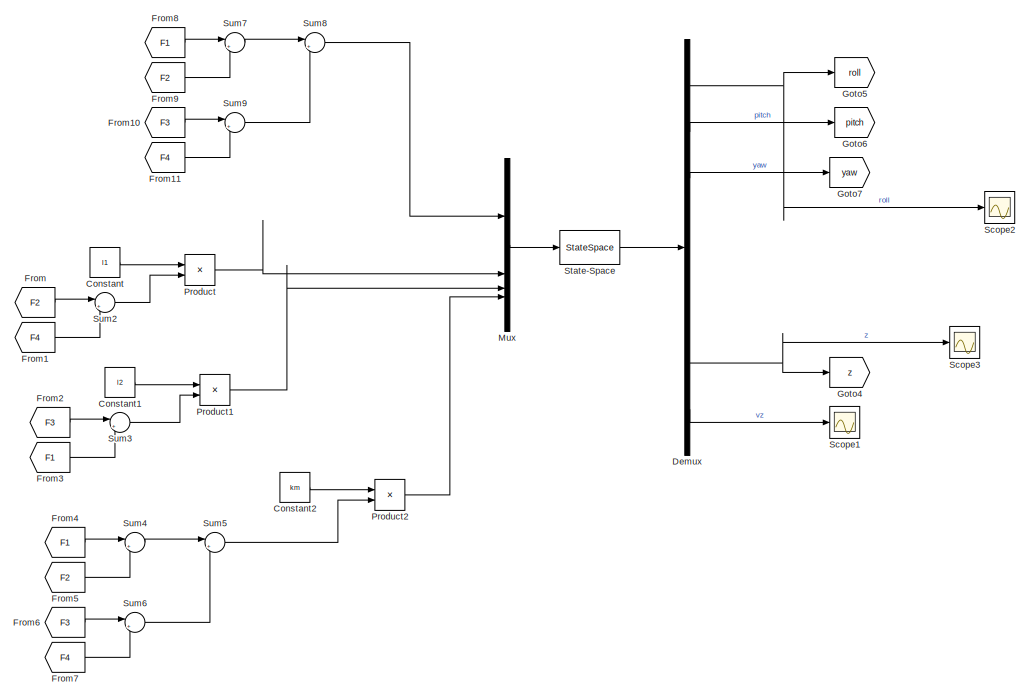
[diagram: root canvas - part 1/2, right side, full height]
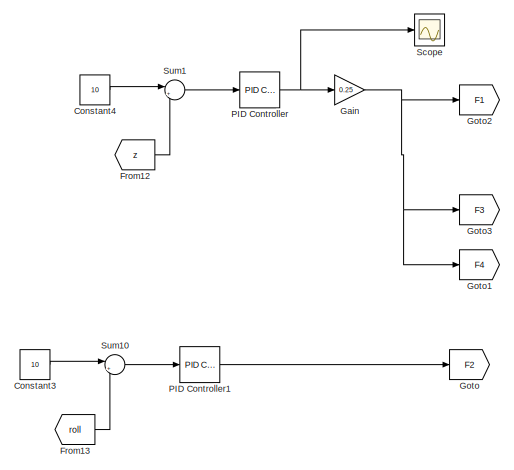
[diagram: root canvas - part 2/2, middle left region]
MODEL slx_9cf74176b95e
KIND model
CONFIG AbsTol = auto
CONFIG EnableMultiTasking = off
CONFIG FixedStep = 0.016
CONFIG MaxStep = auto
CONFIG MinStep = auto
CONFIG RelTol = 1e-3
CONFIG SampleTimeConstraint = Unconstrained
CONFIG SolverName = ode5
CONFIG StartTime = 0.0
CONFIG StopTime = 10
BLOCK [Constant] Constant
  Value = l1
BLOCK [Constant] Constant1
  Value = l2
BLOCK [Constant] Constant2
  Value = km
BLOCK [Constant] Constant3
  Value = 10
BLOCK [Constant] Constant4
  Value = 10
BLOCK [Demux] Demux
  Outputs = 8
BLOCK [From] From
  GotoTag = F2
BLOCK [From] From1
  GotoTag = F4
BLOCK [From] From10
  GotoTag = F3
BLOCK [From] From11
  GotoTag = F4
BLOCK [From] From12
  GotoTag = z
BLOCK [From] From13
  GotoTag = roll
BLOCK [From] From2
  GotoTag = F3
BLOCK [From] From3
  GotoTag = F1
BLOCK [From] From4
  GotoTag = F1
BLOCK [From] From5
  GotoTag = F2
BLOCK [From] From6
  GotoTag = F3
BLOCK [From] From7
  GotoTag = F4
BLOCK [From] From8
  GotoTag = F1
BLOCK [From] From9
  GotoTag = F2
BLOCK [Gain] Gain
  Gain = 0.25
BLOCK [Goto] Goto
  GotoTag = F2
BLOCK [Goto] Goto1
  GotoTag = F4
BLOCK [Goto] Goto2
  GotoTag = F1
BLOCK [Goto] Goto3
  GotoTag = F3
BLOCK [Goto] Goto4
  GotoTag = z
BLOCK [Goto] Goto5
  GotoTag = roll
BLOCK [Goto] Goto6
  GotoTag = pitch
BLOCK [Goto] Goto7
  GotoTag = yaw
BLOCK [Mux] Mux
  DisplayOption = bar
BLOCK [Reference] PID Controller  REF=slpidlib/PID Controller
  LibrarySourceBlock = simulink/Continuous/PID Controller
  SourceBlock = slpidlib/PID Controller
  SourceType = PID 1dof
BLOCK [Reference] PID Controller1  REF=slpidlib/PID Controller
  LibrarySourceBlock = simulink/Continuous/PID Controller
  SourceBlock = slpidlib/PID Controller
  SourceType = PID 1dof
BLOCK [Product] Product
BLOCK [Product] Product1
BLOCK [Product] Product2
BLOCK [Scope] Scope
  Floating = off
  NumInputPorts = 1
  ScopeSpecificationString = Simulink.scopes.TimeScopeBlockCfg('CurrentConfiguration', extmgr.ConfigurationSet(extmgr.Configuration('Core','General UI',true),extmgr.Configuration('Core','Source UI',true),extmgr.Configuration('Sources','WiredSimulink',true,'DataLoggingVariableName','ScopeData3'),extmgr.Configuration('Visuals','Time Domain',true),extmgr.Configuration('Tools','Plot Navigation',true),extmgr.Configuration('Tools',...<+40ch>
BLOCK [Scope] Scope1
  Floating = off
  NumInputPorts = 1
  ScopeSpecificationString = Simulink.scopes.TimeScopeBlockCfg('CurrentConfiguration', extmgr.ConfigurationSet(extmgr.Configuration('Core','General UI',true),extmgr.Configuration('Core','Source UI',true),extmgr.Configuration('Sources','WiredSimulink',true,'DataLoggingVariableName','ScopeData1'),extmgr.Configuration('Visuals','Time Domain',true,'SerializedDisplays',{struct('MinYLimReal','-1.8233','MaxYLimReal','12.94163','YLab...<+1452ch>
BLOCK [Scope] Scope2
  Floating = off
  NumInputPorts = 1
  ScopeSpecificationString = Simulink.scopes.TimeScopeBlockCfg('CurrentConfiguration', extmgr.ConfigurationSet(extmgr.Configuration('Core','General UI',true),extmgr.Configuration('Core','Source UI',true),extmgr.Configuration('Sources','WiredSimulink',true,'DataLoggingVariableName','ScopeData1'),extmgr.Configuration('Visuals','Time Domain',true,'SerializedDisplays',{struct('MinYLimReal','-1.26587','MaxYLimReal','11.39281','YLa...<+1456ch>
BLOCK [Scope] Scope3
  Floating = off
  NumInputPorts = 1
  ScopeSpecificationString = Simulink.scopes.TimeScopeBlockCfg('CurrentConfiguration', extmgr.ConfigurationSet(extmgr.Configuration('Core','General UI',true),extmgr.Configuration('Core','Source UI',true),extmgr.Configuration('Sources','WiredSimulink',true,'DataLoggingVariableName','ScopeData2'),extmgr.Configuration('Visuals','Time Domain',true,'SerializedDisplays',{struct('MinYLimReal','-1.53401','MaxYLimReal','13.80612','YLa...<+1453ch>
BLOCK [StateSpace] State-Space
  A = A
  B = B
  C = C
  D = D
  InitialCondition = 0
BLOCK [Sum] Sum1
  Inputs = |+-
BLOCK [Sum] Sum10
  Inputs = |+-
BLOCK [Sum] Sum2
  Inputs = |+-
BLOCK [Sum] Sum3
  Inputs = |+-
BLOCK [Sum] Sum4
  Inputs = |+-
BLOCK [Sum] Sum5
  Inputs = |++
BLOCK [Sum] Sum6
  Inputs = |+-
BLOCK [Sum] Sum7
  Inputs = |++
BLOCK [Sum] Sum8
  Inputs = |++
BLOCK [Sum] Sum9
  Inputs = |++
LINE Constant1:1 -> Product1:1
LINE Constant2:1 -> Product2:1
LINE Constant3:1 -> Sum10:1
LINE Constant4:1 -> Sum1:1
LINE Constant:1 -> Product:1
NET Demux:1 -> Goto5:1, Scope2:1
LINE Demux:2 -> Goto6:1
LINE Demux:3 -> Goto7:1
NET Demux:7 -> Goto4:1, Scope3:1
LINE Demux:8 -> Scope1:1
LINE From10:1 -> Sum9:1
LINE From11:1 -> Sum9:2
LINE From12:1 -> Sum1:2
LINE From13:1 -> Sum10:2
LINE From1:1 -> Sum2:2
LINE From2:1 -> Sum3:1
LINE From3:1 -> Sum3:2
LINE From4:1 -> Sum4:1
LINE From5:1 -> Sum4:2
LINE From6:1 -> Sum6:1
LINE From7:1 -> Sum6:2
LINE From8:1 -> Sum7:1
LINE From9:1 -> Sum7:2
LINE From:1 -> Sum2:1
NET Gain:1 -> Goto1:1, Goto2:1, Goto3:1
LINE Mux:1 -> State-Space:1
LINE PID Controller1:1 -> Goto:1
NET PID Controller:1 -> Gain:1, Scope:1
LINE Product1:1 -> Mux:3
LINE Product2:1 -> Mux:4
LINE Product:1 -> Mux:2
LINE State-Space:1 -> Demux:1
LINE Sum10:1 -> PID Controller1:1
LINE Sum1:1 -> PID Controller:1
LINE Sum2:1 -> Product:2
LINE Sum3:1 -> Product1:2
LINE Sum4:1 -> Sum5:1
LINE Sum5:1 -> Product2:2
LINE Sum6:1 -> Sum5:2
LINE Sum7:1 -> Sum8:1
LINE Sum8:1 -> Mux:1
LINE Sum9:1 -> Sum8:2
note: NET lines group one-source signal fan-out (src -> all destinations, sorted); 1:1 wires keep LINE
